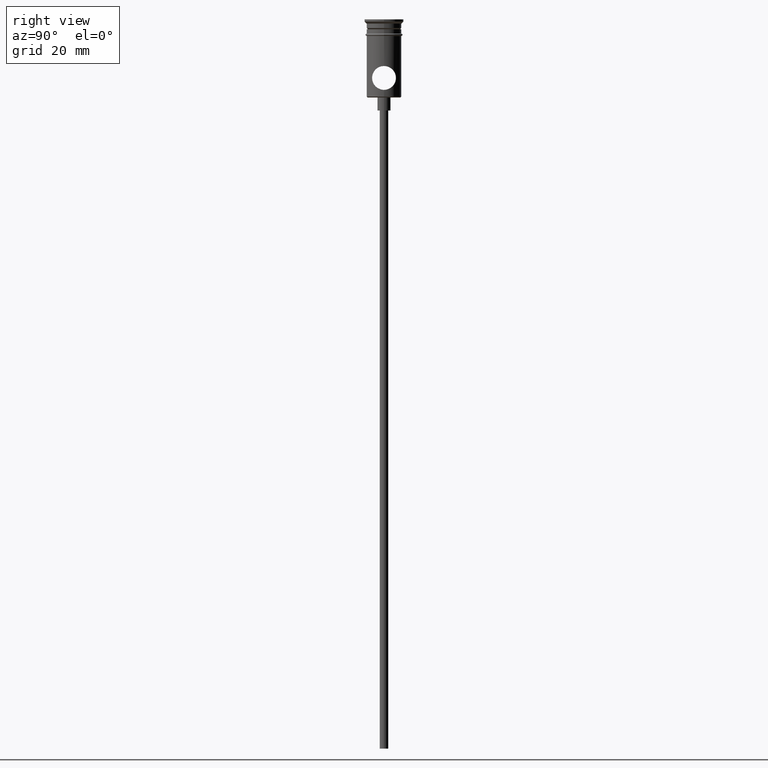
[diagram: clean part render]
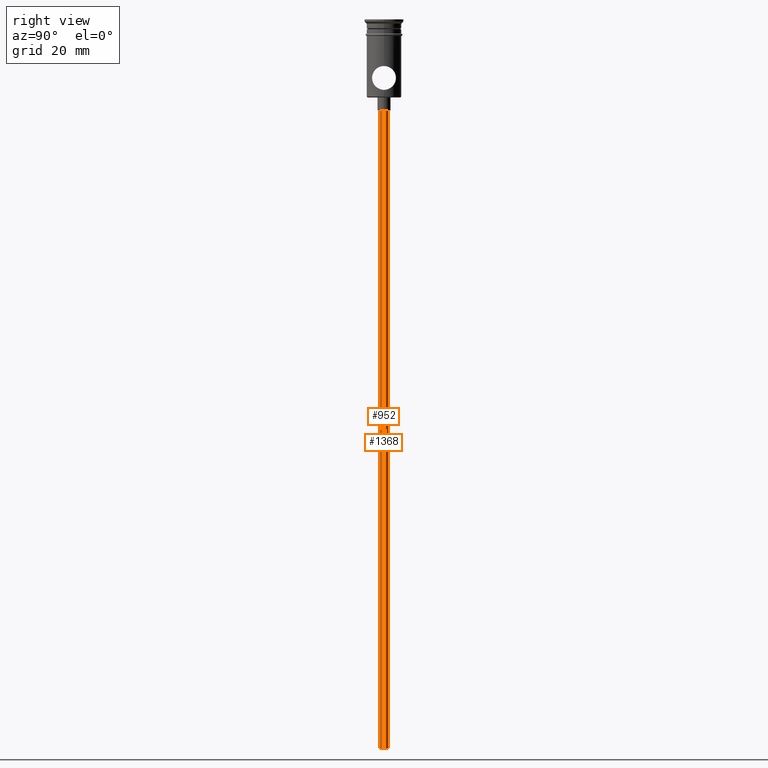
[diagram: same view with one multi-face feature highlighted, each face labeled with its STEP entity id]
A machine part, right view. The highlighted faces form ONE feature: a constant-radius fillet chain: 2 tangent blend faces with common blend radius 1 mm. The faces share edges in the B-rep.
Their STEP definitions:
[1] entity #952 (Cylinder):
#16 = DIRECTION ( 'NONE',  ( -1.000000000000000000, 0.000000000000000000, 0.000000000000000000 ) ) ;
#106 = DIRECTION ( 'NONE',  ( -0.000000000000000000, -0.000000000000000000, 1.000000000000000000 ) ) ;
#108 = VERTEX_POINT ( 'NONE', #1299 ) ;
#113 = ORIENTED_EDGE ( 'NONE', *, *, #759, .F. ) ;
#137 = AXIS2_PLACEMENT_3D ( 'NONE', #859, #865, #557 ) ;
#146 = EDGE_LOOP ( 'NONE', ( #992, #113, #1300, #1336 ) ) ;
#322 = CARTESIAN_POINT ( 'NONE',  ( 0.9999999999999997780, 0.000000000000000000, -167.9999999999999716 ) ) ;
#325 = FACE_OUTER_BOUND ( 'NONE', #146, .T. ) ;
#384 = CIRCLE ( 'NONE', #137, 0.9999999999999997780 ) ;
#419 = LINE ( 'NONE', #322, #1404 ) ;
#454 = DIRECTION ( 'NONE',  ( -0.000000000000000000, -0.000000000000000000, 1.000000000000000000 ) ) ;
#500 = CARTESIAN_POINT ( 'NONE',  ( -0.9999999999999997780, 1.224646799147352961E-16, -167.9999999999999716 ) ) ;
#505 = VECTOR ( 'NONE', #454, 1000.000000000000000 ) ;
#513 = EDGE_CURVE ( 'NONE', #564, #1364, #1316, .T. ) ;
#543 = AXIS2_PLACEMENT_3D ( 'NONE', #704, #1215, #16 ) ;
#557 = DIRECTION ( 'NONE',  ( -1.000000000000000000, 0.000000000000000000, 0.000000000000000000 ) ) ;
#564 = VERTEX_POINT ( 'NONE', #500 ) ;
#642 = EDGE_CURVE ( 'NONE', #1164, #1364, #1024, .T. ) ;
#656 = CYLINDRICAL_SURFACE ( 'NONE', #1222, 0.9999999999999997780 ) ;
#704 = CARTESIAN_POINT ( 'NONE',  ( 0.000000000000000000, 0.000000000000000000, -20.99999999999999645 ) ) ;
#736 = DIRECTION ( 'NONE',  ( -0.000000000000000000, -0.000000000000000000, 1.000000000000000000 ) ) ;
#759 = EDGE_CURVE ( 'NONE', #108, #564, #384, .T. ) ;
#799 = CARTESIAN_POINT ( 'NONE',  ( -0.9999999999999997780, 1.224646799147352961E-16, -167.9999999999999716 ) ) ;
#859 = CARTESIAN_POINT ( 'NONE',  ( 0.000000000000000000, 0.000000000000000000, -167.9999999999999716 ) ) ;
#865 = DIRECTION ( 'NONE',  ( 0.000000000000000000, 0.000000000000000000, -1.000000000000000000 ) ) ;
#952 = ADVANCED_FACE ( 'NONE', ( #325 ), #656, .T. ) ;
#976 = DIRECTION ( 'NONE',  ( 1.000000000000000000, 0.000000000000000000, 0.000000000000000000 ) ) ;
#992 = ORIENTED_EDGE ( 'NONE', *, *, #513, .F. ) ;
#1024 = CIRCLE ( 'NONE', #543, 0.9999999999999997780 ) ;
#1075 = CARTESIAN_POINT ( 'NONE',  ( 0.000000000000000000, 0.000000000000000000, -167.9999999999999716 ) ) ;
#1102 = CARTESIAN_POINT ( 'NONE',  ( 0.9999999999999997780, 0.000000000000000000, -20.99999999999999645 ) ) ;
#1164 = VERTEX_POINT ( 'NONE', #1102 ) ;
#1171 = CARTESIAN_POINT ( 'NONE',  ( -0.9999999999999997780, 1.224646799147352961E-16, -20.99999999999999645 ) ) ;
#1215 = DIRECTION ( 'NONE',  ( 0.000000000000000000, 0.000000000000000000, -1.000000000000000000 ) ) ;
#1222 = AXIS2_PLACEMENT_3D ( 'NONE', #1075, #106, #976 ) ;
#1299 = CARTESIAN_POINT ( 'NONE',  ( 0.9999999999999997780, 0.000000000000000000, -167.9999999999999716 ) ) ;
#1300 = ORIENTED_EDGE ( 'NONE', *, *, #1350, .T. ) ;
#1316 = LINE ( 'NONE', #799, #505 ) ;
#1336 = ORIENTED_EDGE ( 'NONE', *, *, #642, .T. ) ;
#1350 = EDGE_CURVE ( 'NONE', #108, #1164, #419, .T. ) ;
#1364 = VERTEX_POINT ( 'NONE', #1171 ) ;
#1404 = VECTOR ( 'NONE', #736, 1000.000000000000000 ) ;
[2] entity #1368 (Cylinder):
#35 = CARTESIAN_POINT ( 'NONE',  ( 0.000000000000000000, 0.000000000000000000, -20.99999999999999645 ) ) ;
#81 = ORIENTED_EDGE ( 'NONE', *, *, #1350, .F. ) ;
#108 = VERTEX_POINT ( 'NONE', #1299 ) ;
#118 = AXIS2_PLACEMENT_3D ( 'NONE', #765, #654, #953 ) ;
#142 = DIRECTION ( 'NONE',  ( -1.000000000000000000, 0.000000000000000000, 0.000000000000000000 ) ) ;
#155 = EDGE_CURVE ( 'NONE', #1364, #1164, #638, .T. ) ;
#208 = FACE_OUTER_BOUND ( 'NONE', #804, .T. ) ;
#273 = CIRCLE ( 'NONE', #452, 0.9999999999999997780 ) ;
#322 = CARTESIAN_POINT ( 'NONE',  ( 0.9999999999999997780, 0.000000000000000000, -167.9999999999999716 ) ) ;
#373 = DIRECTION ( 'NONE',  ( -1.000000000000000000, 0.000000000000000000, 0.000000000000000000 ) ) ;
#393 = ORIENTED_EDGE ( 'NONE', *, *, #513, .T. ) ;
#419 = LINE ( 'NONE', #322, #1404 ) ;
#424 = EDGE_CURVE ( 'NONE', #564, #108, #273, .T. ) ;
#425 = AXIS2_PLACEMENT_3D ( 'NONE', #35, #1346, #373 ) ;
#452 = AXIS2_PLACEMENT_3D ( 'NONE', #1120, #567, #142 ) ;
#454 = DIRECTION ( 'NONE',  ( -0.000000000000000000, -0.000000000000000000, 1.000000000000000000 ) ) ;
#458 = ORIENTED_EDGE ( 'NONE', *, *, #155, .T. ) ;
#500 = CARTESIAN_POINT ( 'NONE',  ( -0.9999999999999997780, 1.224646799147352961E-16, -167.9999999999999716 ) ) ;
#505 = VECTOR ( 'NONE', #454, 1000.000000000000000 ) ;
#513 = EDGE_CURVE ( 'NONE', #564, #1364, #1316, .T. ) ;
#564 = VERTEX_POINT ( 'NONE', #500 ) ;
#567 = DIRECTION ( 'NONE',  ( 0.000000000000000000, 0.000000000000000000, -1.000000000000000000 ) ) ;
#638 = CIRCLE ( 'NONE', #425, 0.9999999999999997780 ) ;
#644 = CYLINDRICAL_SURFACE ( 'NONE', #118, 0.9999999999999997780 ) ;
#654 = DIRECTION ( 'NONE',  ( -0.000000000000000000, -0.000000000000000000, 1.000000000000000000 ) ) ;
#736 = DIRECTION ( 'NONE',  ( -0.000000000000000000, -0.000000000000000000, 1.000000000000000000 ) ) ;
#765 = CARTESIAN_POINT ( 'NONE',  ( 0.000000000000000000, 0.000000000000000000, -167.9999999999999716 ) ) ;
#799 = CARTESIAN_POINT ( 'NONE',  ( -0.9999999999999997780, 1.224646799147352961E-16, -167.9999999999999716 ) ) ;
#804 = EDGE_LOOP ( 'NONE', ( #1256, #393, #458, #81 ) ) ;
#953 = DIRECTION ( 'NONE',  ( 1.000000000000000000, 0.000000000000000000, 0.000000000000000000 ) ) ;
#1102 = CARTESIAN_POINT ( 'NONE',  ( 0.9999999999999997780, 0.000000000000000000, -20.99999999999999645 ) ) ;
#1120 = CARTESIAN_POINT ( 'NONE',  ( 0.000000000000000000, 0.000000000000000000, -167.9999999999999716 ) ) ;
#1164 = VERTEX_POINT ( 'NONE', #1102 ) ;
#1171 = CARTESIAN_POINT ( 'NONE',  ( -0.9999999999999997780, 1.224646799147352961E-16, -20.99999999999999645 ) ) ;
#1256 = ORIENTED_EDGE ( 'NONE', *, *, #424, .F. ) ;
#1299 = CARTESIAN_POINT ( 'NONE',  ( 0.9999999999999997780, 0.000000000000000000, -167.9999999999999716 ) ) ;
#1316 = LINE ( 'NONE', #799, #505 ) ;
#1346 = DIRECTION ( 'NONE',  ( 0.000000000000000000, 0.000000000000000000, -1.000000000000000000 ) ) ;
#1350 = EDGE_CURVE ( 'NONE', #108, #1164, #419, .T. ) ;
#1364 = VERTEX_POINT ( 'NONE', #1171 ) ;
#1368 = ADVANCED_FACE ( 'NONE', ( #208 ), #644, .T. ) ;
#1404 = VECTOR ( 'NONE', #736, 1000.000000000000000 ) ;